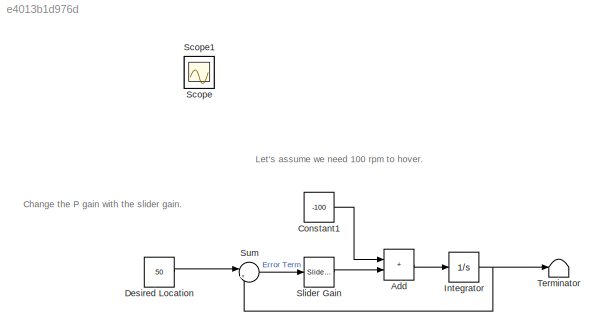
MODEL slx_e4013b1d976d
KIND model
CONFIG AbsTol = auto
CONFIG EnableMultiTasking = off
CONFIG FixedStep = auto
CONFIG MaxStep = auto
CONFIG MinStep = auto
CONFIG RelTol = 1e-3
CONFIG SampleTimeConstraint = Unconstrained
CONFIG SolverName = VariableStepAuto
CONFIG StartTime = 0.0
CONFIG StopTime = Inf
BLOCK [Sum] Add
  IconShape = rectangular
BLOCK [Constant] Constant1
  Value = -100
BLOCK [Constant] Desired Location
  Value = 50
BLOCK [Integrator] Integrator
BLOCK [Scope] Scope
  ActiveDisplayYMaximum = 54.478163559583656
  ActiveDisplayYMinimum = -6.0531292843981808
  Floating = off
  GraphicalSettings = {"Style":{"BackgroundColor":[0.12941176470588237,0.12941176470588237,0.12941176470588237],"AxesColor":[0.07058823529411765,0.07058823529411765,0.07058823529411765],"LabelsColor":[0.8509803921568627,0.8509803921568627,0.8509803921568627],"PreserveColors":false,"Visible":[true],"LineStyle":["-"],"LineWidth":[1.5],"BarWidth":[0.9],"LineColor":["auto"],"LineFaceAlpha":[1],"LineEdgeAlpha":[1],"Marker":...<+2005ch>
  IOType = viewer
  MultipleDisplayCache = [{"MaxYLimMag":54.478163559583656,"MaxYLimReal":54.478163559583656,"MinYLimMag":0,"MinYLimReal":-6.0531292843981808,"PlotAsMagnitudePhase":false,"ShowGrid":true,"ShowLegend":false,"Title":"%<SignalLabel>","YLabel":""}]
  NumInputPorts = 1
  ScopeFrameLocation = window
  Visible = on
  WasSavedAsWebScope = on
  WindowPosition = [3056.000000,143.000000,560.000000,420.000000,]
BLOCK [Scope] Scope1
  ActiveDisplayYMaximum = 100.00000000000001
  ActiveDisplayYMinimum = 99.999999999999986
  DataLoggingVariableName = ScopeData1
  Floating = off
  GraphicalSettings = {"Style":{"BackgroundColor":[0.12941176470588237,0.12941176470588237,0.12941176470588237],"AxesColor":[0.07058823529411765,0.07058823529411765,0.07058823529411765],"LabelsColor":[0.8509803921568627,0.8509803921568627,0.8509803921568627],"PreserveColors":false,"Visible":[true],"LineStyle":["-"],"LineWidth":[1.5],"BarWidth":[0.9],"LineColor":["auto"],"LineFaceAlpha":[1],"LineEdgeAlpha":[1],"Marker":...<+2037ch>
  IOType = viewer
  MultipleDisplayCache = [{"MaxYLimMag":100.00000000000001,"MaxYLimReal":100.00000000000001,"MinYLimMag":99.999999999999986,"MinYLimReal":99.999999999999986,"PlotAsMagnitudePhase":false,"ShowGrid":true,"ShowLegend":false,"Title":"%<SignalLabel>","YLabel":""}]
  NumInputPorts = 1
  ScopeFrameLocation = window
  Visible = on
  WasSavedAsWebScope = on
  WindowPosition = [2291.000000,222.000000,560.000000,420.000000,]
BLOCK [Reference] Slider Gain  REF=simulink/Math
Operations/Slider
Gain
  SourceBlock = simulink/Math\nOperations/Slider\nGain
  SourceType = Slider Gain
BLOCK [Sum] Sum
  Inputs = |+-
BLOCK [Terminator] Terminator
ANNOTATION (root): Change the P gain with the slider gain.
ANNOTATION (root): Let's assume we need 100 rpm to hover.
LINE Add:1 -> Integrator:1
LINE Constant1:1 -> Add:1
LINE Desired Location:1 -> Sum:1
NET Integrator:1 -> Sum:2, Terminator:1
LINE Slider Gain:1 -> Add:2
LINE Sum:1 -> Slider Gain:1
note: NET lines group one-source signal fan-out (src -> all destinations, sorted); 1:1 wires keep LINE
